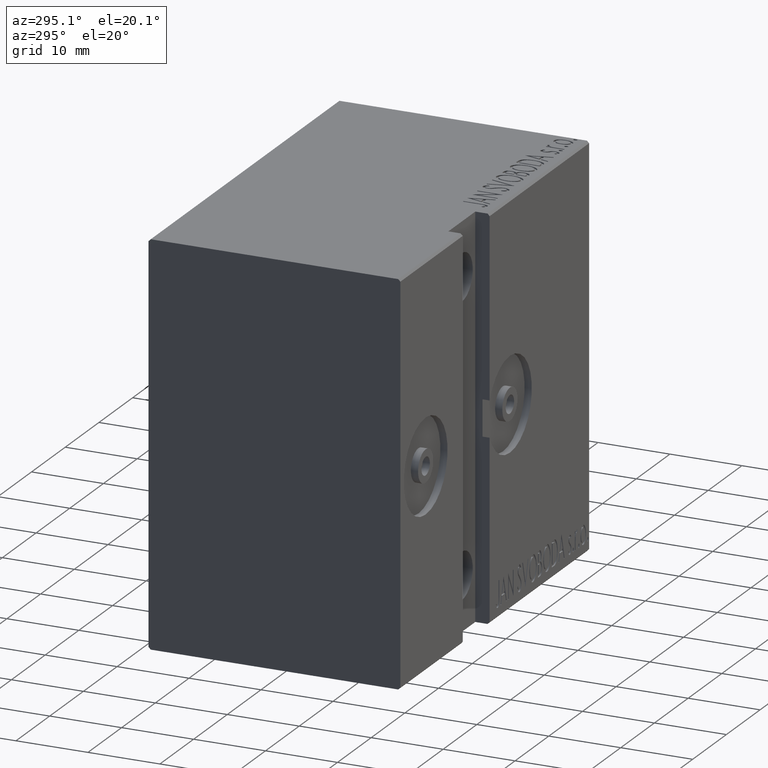
[diagram: clean part render]
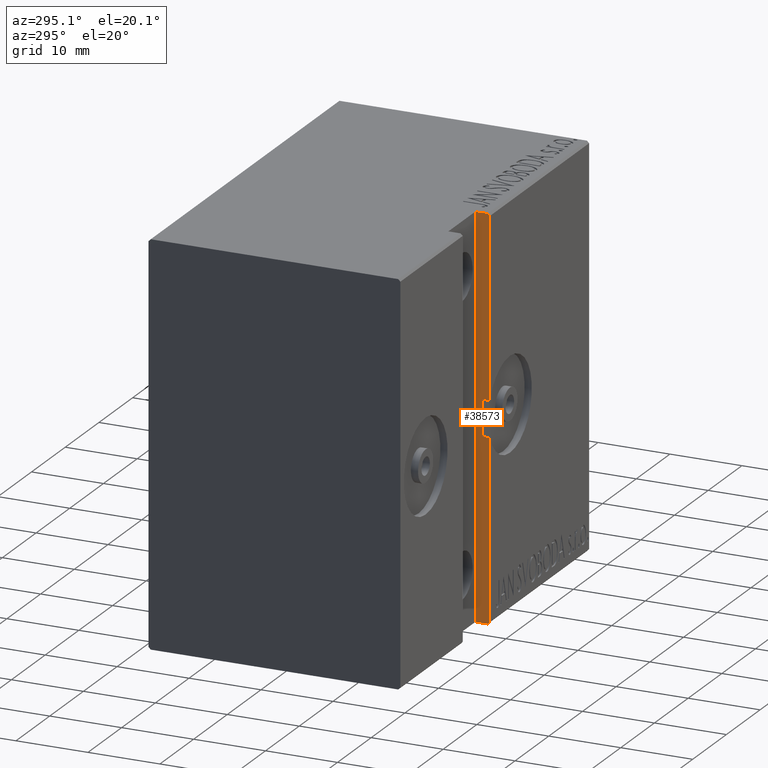
[diagram: same view with one face highlighted and labeled with its STEP entity id]
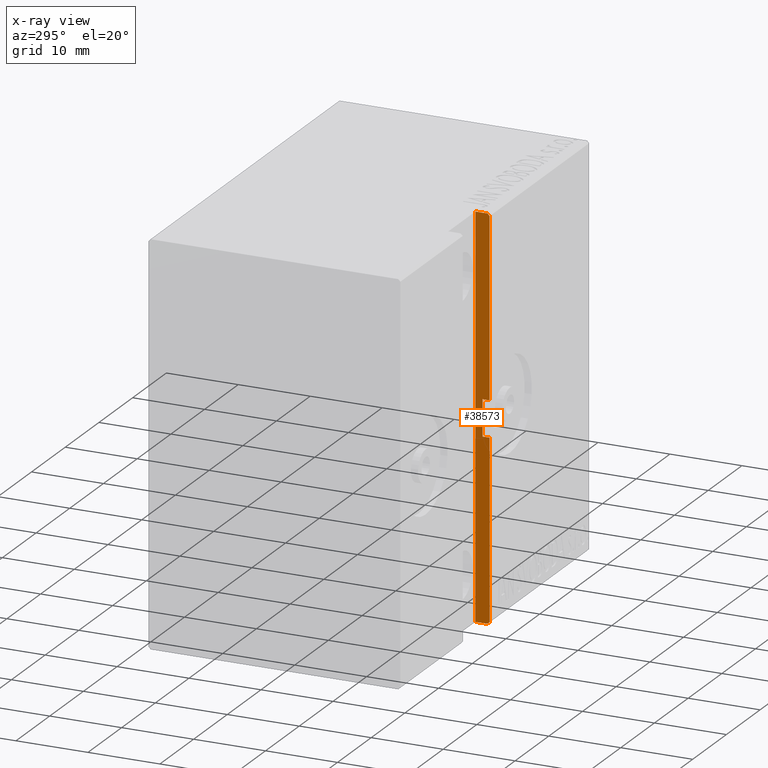
[diagram: x-ray of the same camera — body ghosted, the highlighted face saturated]
A machine part, auxiliary view. The second image highlights one B-rep face of the part: STEP entity #38573.
The next image is the same camera in x-ray: the body ghosted, the highlighted face saturated — about 0% of this face is hidden behind the body in this view.
In plain terms, the highlighted planar face has unit normal (1, 0, 0).
Its self-contained STEP definition (entity closure, byte-faithful):
#780 = CARTESIAN_POINT ( 'NONE',  ( 29.50000000000000355, 16.50000000000000000, -2.499999999999997780 ) ) ;
#812 = CARTESIAN_POINT ( 'NONE',  ( 29.50000000000000711, 17.20000000000000284, 27.50000000000000000 ) ) ;
#1024 = LINE ( 'NONE', #812, #35086 ) ;
#1178 = DIRECTION ( 'NONE',  ( 1.261617073437677259E-16, 0.000000000000000000, 1.000000000000000000 ) ) ;
#1367 = CARTESIAN_POINT ( 'NONE',  ( 29.50000000000000355, 17.50000000000000000, -2.499999999999997780 ) ) ;
#1371 = CARTESIAN_POINT ( 'NONE',  ( 29.50000000000000000, 17.50000000000000000, -27.19999999999999574 ) ) ;
#1462 = VERTEX_POINT ( 'NONE', #27576 ) ;
#2064 = DIRECTION ( 'NONE',  ( -1.000000000000000000, 0.000000000000000000, 1.261617073437677259E-16 ) ) ;
#2954 = CARTESIAN_POINT ( 'NONE',  ( 29.50000000000000355, 16.50000000000000000, 2.500000000000000444 ) ) ;
#3334 = VERTEX_POINT ( 'NONE', #1371 ) ;
#4634 = DIRECTION ( 'NONE',  ( -1.261617073437677259E-16, 1.105614492169230117E-16, -1.000000000000000000 ) ) ;
#4843 = DIRECTION ( 'NONE',  ( -0.000000000000000000, 1.000000000000000000, -0.000000000000000000 ) ) ;
#5317 = PLANE ( 'NONE',  #37266 ) ;
#5445 = EDGE_CURVE ( 'NONE', #26269, #34742, #13313, .T. ) ;
#5768 = ORIENTED_EDGE ( 'NONE', *, *, #29713, .F. ) ;
#6427 = LINE ( 'NONE', #2954, #29234 ) ;
#6832 = DIRECTION ( 'NONE',  ( 1.261617073437677259E-16, 0.000000000000000000, 1.000000000000000000 ) ) ;
#7577 = CARTESIAN_POINT ( 'NONE',  ( 29.50000000000000711, 17.20000000000000284, 27.50000000000002132 ) ) ;
#7886 = DIRECTION ( 'NONE',  ( 8.920979878885184166E-17, 0.7071067811865393571, 0.7071067811865556774 ) ) ;
#8405 = ORIENTED_EDGE ( 'NONE', *, *, #12619, .F. ) ;
#8774 = ORIENTED_EDGE ( 'NONE', *, *, #36579, .T. ) ;
#8798 = CARTESIAN_POINT ( 'NONE',  ( 29.50000000000000000, 15.50000000000000178, -27.50000000000000711 ) ) ;
#9049 = VECTOR ( 'NONE', #4634, 1000.000000000000000 ) ;
#9080 = DIRECTION ( 'NONE',  ( 1.261617073437677259E-16, 0.000000000000000000, 1.000000000000000000 ) ) ;
#9205 = CARTESIAN_POINT ( 'NONE',  ( 29.50000000000000711, 17.50000000000000000, 27.20000000000000639 ) ) ;
#9406 = CARTESIAN_POINT ( 'NONE',  ( 29.50000000000000711, 15.50000000000000178, 27.50000000000002132 ) ) ;
#9534 = VERTEX_POINT ( 'NONE', #9406 ) ;
#10131 = VERTEX_POINT ( 'NONE', #7577 ) ;
#10976 = LINE ( 'NONE', #780, #36548 ) ;
#11966 = DIRECTION ( 'NONE',  ( 0.000000000000000000, -1.000000000000000000, -1.261617073437677752E-16 ) ) ;
#12619 = EDGE_CURVE ( 'NONE', #9534, #10131, #32258, .T. ) ;
#12638 = VERTEX_POINT ( 'NONE', #8798 ) ;
#13102 = ORIENTED_EDGE ( 'NONE', *, *, #14946, .T. ) ;
#13313 = LINE ( 'NONE', #26583, #37053 ) ;
#13940 = LINE ( 'NONE', #30693, #23409 ) ;
#14589 = CARTESIAN_POINT ( 'NONE',  ( 29.50000000000000000, 15.50000000000000178, -27.50000000000000711 ) ) ;
#14946 = EDGE_CURVE ( 'NONE', #34742, #10131, #1024, .T. ) ;
#15941 = DIRECTION ( 'NONE',  ( -0.000000000000000000, 1.000000000000000000, -0.000000000000000000 ) ) ;
#17835 = VERTEX_POINT ( 'NONE', #1367 ) ;
#17866 = VECTOR ( 'NONE', #9080, 1000.000000000000000 ) ;
#18197 = ORIENTED_EDGE ( 'NONE', *, *, #40203, .T. ) ;
#18634 = EDGE_CURVE ( 'NONE', #17835, #1462, #10976, .T. ) ;
#20517 = VECTOR ( 'NONE', #4843, 1000.000000000000000 ) ;
#20649 = VERTEX_POINT ( 'NONE', #32423 ) ;
#21338 = LINE ( 'NONE', #34405, #9049 ) ;
#22852 = CARTESIAN_POINT ( 'NONE',  ( 29.50000000000000355, 17.50000000000000000, 2.500000000000000444 ) ) ;
#23409 = VECTOR ( 'NONE', #7886, 1000.000000000000000 ) ;
#24831 = LINE ( 'NONE', #37874, #32039 ) ;
#26269 = VERTEX_POINT ( 'NONE', #22852 ) ;
#26583 = CARTESIAN_POINT ( 'NONE',  ( 29.50000000000000000, 17.50000000000000000, -27.50000000000000711 ) ) ;
#26799 = ORIENTED_EDGE ( 'NONE', *, *, #30254, .F. ) ;
#27533 = EDGE_LOOP ( 'NONE', ( #26799, #42274, #40813, #13102, #8405, #5768, #8774, #41474, #18197, #33859 ) ) ;
#27576 = CARTESIAN_POINT ( 'NONE',  ( 29.50000000000000355, 16.50000000000000000, -2.499999999999997780 ) ) ;
#28687 = EDGE_CURVE ( 'NONE', #20649, #26269, #6427, .T. ) ;
#28705 = LINE ( 'NONE', #14589, #20517 ) ;
#28772 = VECTOR ( 'NONE', #15941, 1000.000000000000000 ) ;
#29234 = VECTOR ( 'NONE', #42715, 1000.000000000000000 ) ;
#29713 = EDGE_CURVE ( 'NONE', #12638, #9534, #24831, .T. ) ;
#29954 = VERTEX_POINT ( 'NONE', #30867 ) ;
#30254 = EDGE_CURVE ( 'NONE', #20649, #1462, #21338, .T. ) ;
#30693 = CARTESIAN_POINT ( 'NONE',  ( 29.50000000000000000, 17.50000000000000355, -27.19999999999999574 ) ) ;
#30867 = CARTESIAN_POINT ( 'NONE',  ( 29.50000000000000000, 17.20000000000000284, -27.50000000000000711 ) ) ;
#31816 = CARTESIAN_POINT ( 'NONE',  ( 29.50000000000000000, 15.50000000000000178, -27.50000000000000711 ) ) ;
#32039 = VECTOR ( 'NONE', #1178, 1000.000000000000000 ) ;
#32258 = LINE ( 'NONE', #32474, #28772 ) ;
#32338 = CARTESIAN_POINT ( 'NONE',  ( 29.50000000000000000, 17.50000000000000000, -27.50000000000000711 ) ) ;
#32423 = CARTESIAN_POINT ( 'NONE',  ( 29.50000000000000355, 16.50000000000000000, 2.500000000000000444 ) ) ;
#32474 = CARTESIAN_POINT ( 'NONE',  ( 29.50000000000000711, 15.50000000000000178, 27.50000000000002132 ) ) ;
#33859 = ORIENTED_EDGE ( 'NONE', *, *, #18634, .T. ) ;
#34405 = CARTESIAN_POINT ( 'NONE',  ( 29.50000000000000000, 16.50000000000000355, -27.50000000000000711 ) ) ;
#34742 = VERTEX_POINT ( 'NONE', #9205 ) ;
#35079 = FACE_OUTER_BOUND ( 'NONE', #27533, .T. ) ;
#35086 = VECTOR ( 'NONE', #40356, 999.9999999999998863 ) ;
#36548 = VECTOR ( 'NONE', #11966, 1000.000000000000000 ) ;
#36579 = EDGE_CURVE ( 'NONE', #12638, #29954, #28705, .T. ) ;
#37053 = VECTOR ( 'NONE', #6832, 1000.000000000000000 ) ;
#37266 = AXIS2_PLACEMENT_3D ( 'NONE', #31816, #2064, #41817 ) ;
#37874 = CARTESIAN_POINT ( 'NONE',  ( 29.50000000000000000, 15.50000000000000178, -27.50000000000000711 ) ) ;
#38573 = ADVANCED_FACE ( 'NONE', ( #35079 ), #5317, .F. ) ;
#39295 = LINE ( 'NONE', #32338, #17866 ) ;
#39723 = EDGE_CURVE ( 'NONE', #29954, #3334, #13940, .T. ) ;
#40203 = EDGE_CURVE ( 'NONE', #3334, #17835, #39295, .T. ) ;
#40356 = DIRECTION ( 'NONE',  ( 8.920979878885031324E-17, -0.7071067811865515695, 0.7071067811865435759 ) ) ;
#40813 = ORIENTED_EDGE ( 'NONE', *, *, #5445, .T. ) ;
#41474 = ORIENTED_EDGE ( 'NONE', *, *, #39723, .T. ) ;
#41817 = DIRECTION ( 'NONE',  ( 1.261617073437677259E-16, 0.000000000000000000, 1.000000000000000000 ) ) ;
#42274 = ORIENTED_EDGE ( 'NONE', *, *, #28687, .T. ) ;
#42715 = DIRECTION ( 'NONE',  ( -0.000000000000000000, 1.000000000000000000, 1.261617073437677752E-16 ) ) ;